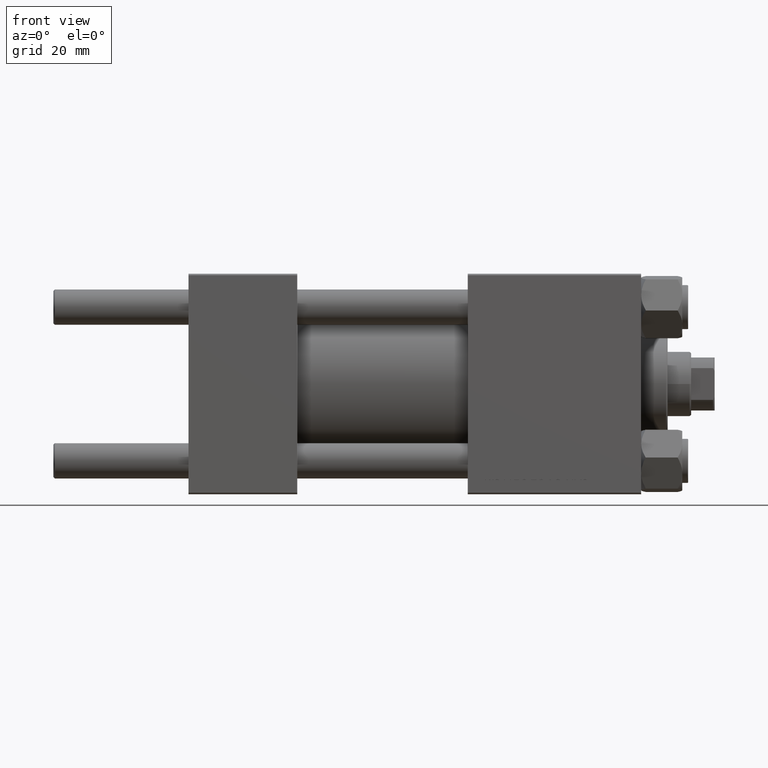
[diagram: clean part render]
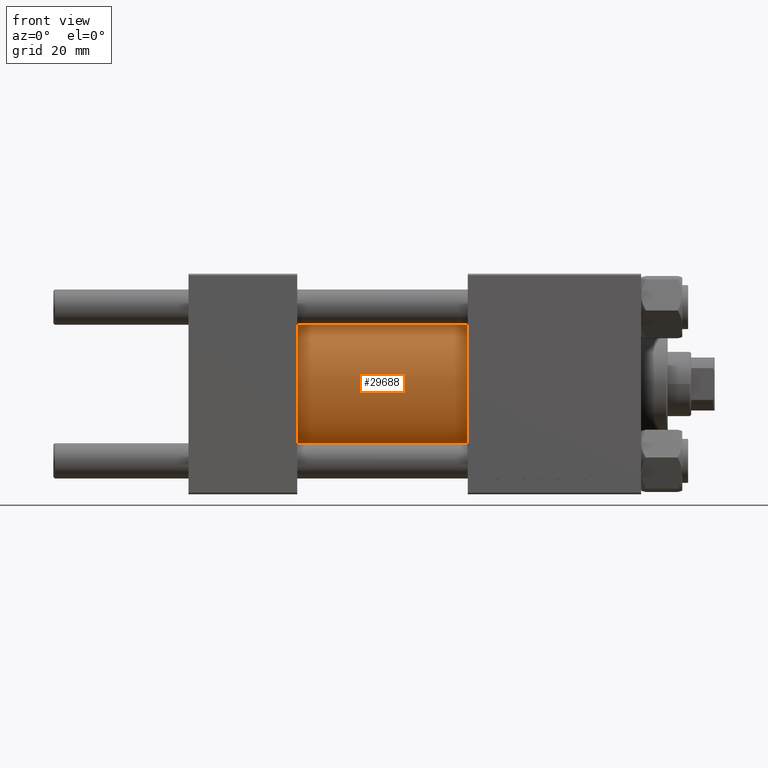
[diagram: same view with one face highlighted and labeled with its STEP entity id]
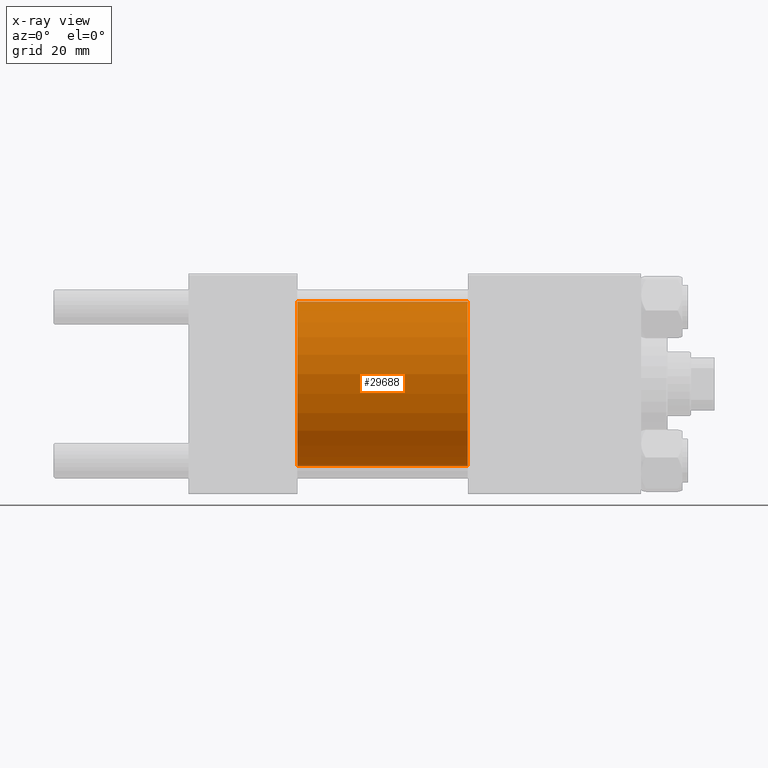
[diagram: x-ray of the same camera — body ghosted, the highlighted face saturated]
A machine part, front view. The second image highlights one B-rep face of the part: STEP entity #29688.
The next image is the same camera in x-ray: the body ghosted, the highlighted face saturated — about 2% of this face is hidden behind the body in this view.
In plain terms, the highlighted cylindrical surface (partial cylindrical patch) has radius 28 mm, axis along (-1, -0, -0).
Its self-contained STEP definition (entity closure, byte-faithful):
#639 = LINE ( 'NONE', #3684, #19466 ) ;
#3684 = CARTESIAN_POINT ( 'NONE',  ( 95.00000000000000000, 3.429011037612588487E-15, -28.00000000000000000 ) ) ;
#4692 = VERTEX_POINT ( 'NONE', #43517 ) ;
#7947 = ORIENTED_EDGE ( 'NONE', *, *, #37688, .T. ) ;
#8046 = CYLINDRICAL_SURFACE ( 'NONE', #36535, 28.00000000000000000 ) ;
#9512 = VERTEX_POINT ( 'NONE', #18516 ) ;
#9888 = ORIENTED_EDGE ( 'NONE', *, *, #21028, .F. ) ;
#9941 = DIRECTION ( 'NONE',  ( -1.000000000000000000, -0.000000000000000000, -0.000000000000000000 ) ) ;
#11200 = CARTESIAN_POINT ( 'NONE',  ( 37.00000000000000000, 0.000000000000000000, 0.000000000000000000 ) ) ;
#11965 = DIRECTION ( 'NONE',  ( 1.000000000000000000, -0.000000000000000000, 0.000000000000000000 ) ) ;
#15333 = CIRCLE ( 'NONE', #47693, 28.00000000000000000 ) ;
#18516 = CARTESIAN_POINT ( 'NONE',  ( 95.00000000000000000, 3.429011037612588487E-15, -28.00000000000000000 ) ) ;
#18738 = EDGE_CURVE ( 'NONE', #24660, #20454, #44615, .T. ) ;
#19124 = DIRECTION ( 'NONE',  ( -1.000000000000000000, -0.000000000000000000, -0.000000000000000000 ) ) ;
#19466 = VECTOR ( 'NONE', #19124, 1000.000000000000000 ) ;
#20311 = ORIENTED_EDGE ( 'NONE', *, *, #18738, .T. ) ;
#20454 = VERTEX_POINT ( 'NONE', #25589 ) ;
#21028 = EDGE_CURVE ( 'NONE', #9512, #4692, #639, .T. ) ;
#24518 = EDGE_CURVE ( 'NONE', #24660, #9512, #15333, .T. ) ;
#24660 = VERTEX_POINT ( 'NONE', #30735 ) ;
#25269 = EDGE_LOOP ( 'NONE', ( #9888, #48638, #20311, #7947 ) ) ;
#25589 = CARTESIAN_POINT ( 'NONE',  ( 37.00000000000000000, 0.000000000000000000, 28.00000000000000000 ) ) ;
#26438 = DIRECTION ( 'NONE',  ( 0.000000000000000000, 0.000000000000000000, -1.000000000000000000 ) ) ;
#27406 = DIRECTION ( 'NONE',  ( 0.000000000000000000, 0.000000000000000000, 1.000000000000000000 ) ) ;
#29688 = ADVANCED_FACE ( 'NONE', ( #42974 ), #8046, .T. ) ;
#30735 = CARTESIAN_POINT ( 'NONE',  ( 95.00000000000000000, 0.000000000000000000, 28.00000000000000000 ) ) ;
#36535 = AXIS2_PLACEMENT_3D ( 'NONE', #49830, #39183, #46769 ) ;
#37688 = EDGE_CURVE ( 'NONE', #20454, #4692, #43146, .T. ) ;
#39183 = DIRECTION ( 'NONE',  ( -1.000000000000000000, -0.000000000000000000, -0.000000000000000000 ) ) ;
#39954 = AXIS2_PLACEMENT_3D ( 'NONE', #11200, #11965, #27406 ) ;
#41870 = CARTESIAN_POINT ( 'NONE',  ( 95.00000000000000000, 0.000000000000000000, 0.000000000000000000 ) ) ;
#42974 = FACE_OUTER_BOUND ( 'NONE', #25269, .T. ) ;
#43146 = CIRCLE ( 'NONE', #39954, 28.00000000000000000 ) ;
#43517 = CARTESIAN_POINT ( 'NONE',  ( 37.00000000000000000, 3.429011037612588487E-15, -28.00000000000000000 ) ) ;
#44481 = DIRECTION ( 'NONE',  ( 1.000000000000000000, 0.000000000000000000, 0.000000000000000000 ) ) ;
#44615 = LINE ( 'NONE', #45627, #50069 ) ;
#45627 = CARTESIAN_POINT ( 'NONE',  ( 95.00000000000000000, 0.000000000000000000, 28.00000000000000000 ) ) ;
#46769 = DIRECTION ( 'NONE',  ( 0.000000000000000000, 0.000000000000000000, 1.000000000000000000 ) ) ;
#47693 = AXIS2_PLACEMENT_3D ( 'NONE', #41870, #44481, #26438 ) ;
#48638 = ORIENTED_EDGE ( 'NONE', *, *, #24518, .F. ) ;
#49830 = CARTESIAN_POINT ( 'NONE',  ( 95.00000000000000000, 0.000000000000000000, 0.000000000000000000 ) ) ;
#50069 = VECTOR ( 'NONE', #9941, 1000.000000000000000 ) ;